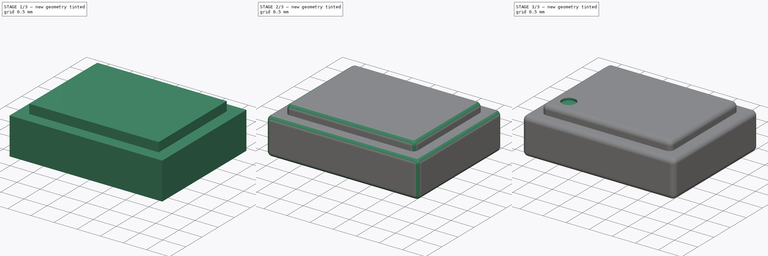
[diagram: build sequence overview — one tinted view per stage of 3, left to right]
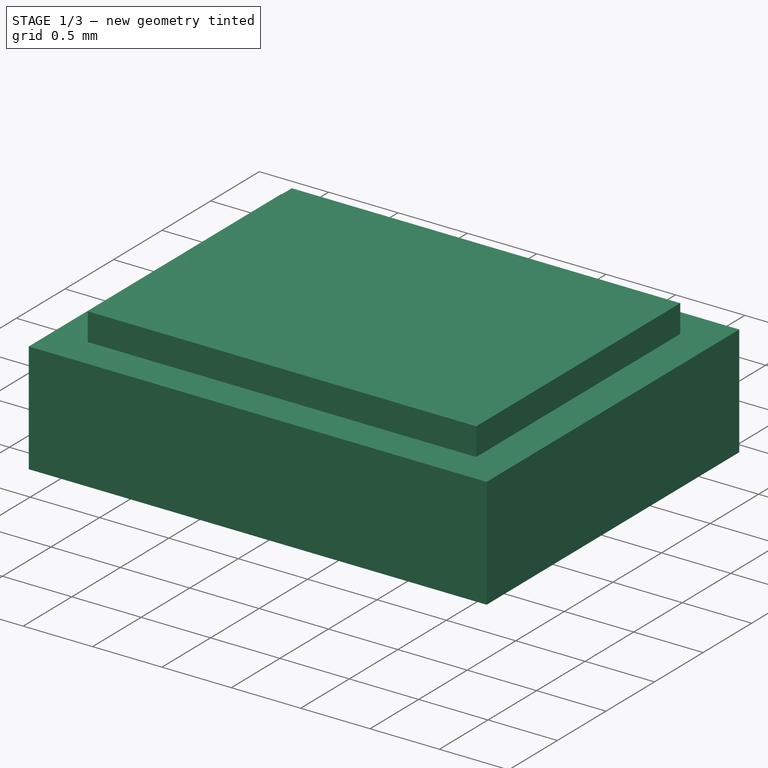
[diagram: stage 1 of 3 — iso view after this stage's code; geometry added in this stage tinted green]
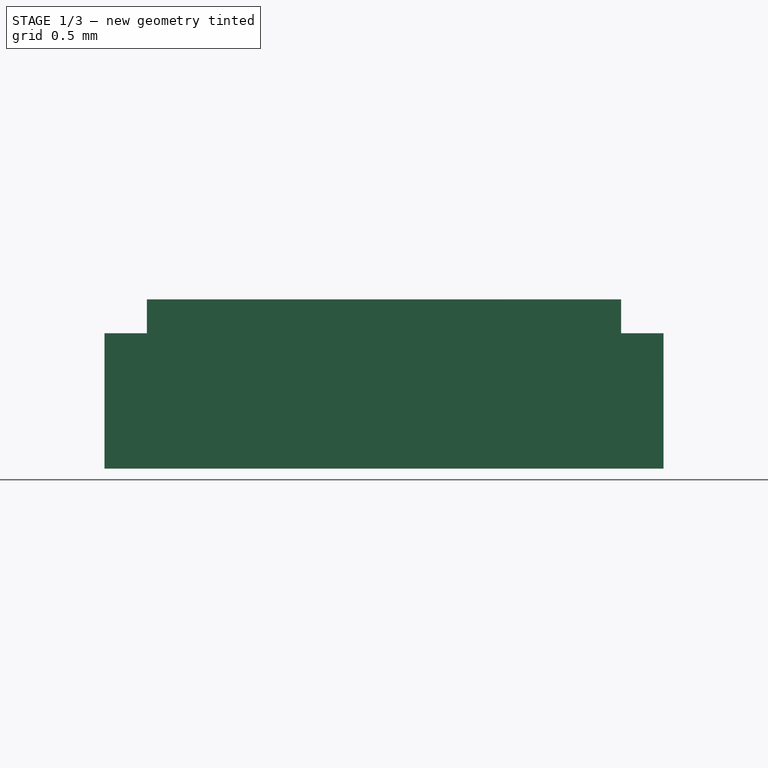
[diagram: stage 1 of 3 — front view after this stage's code; geometry added in this stage tinted green]
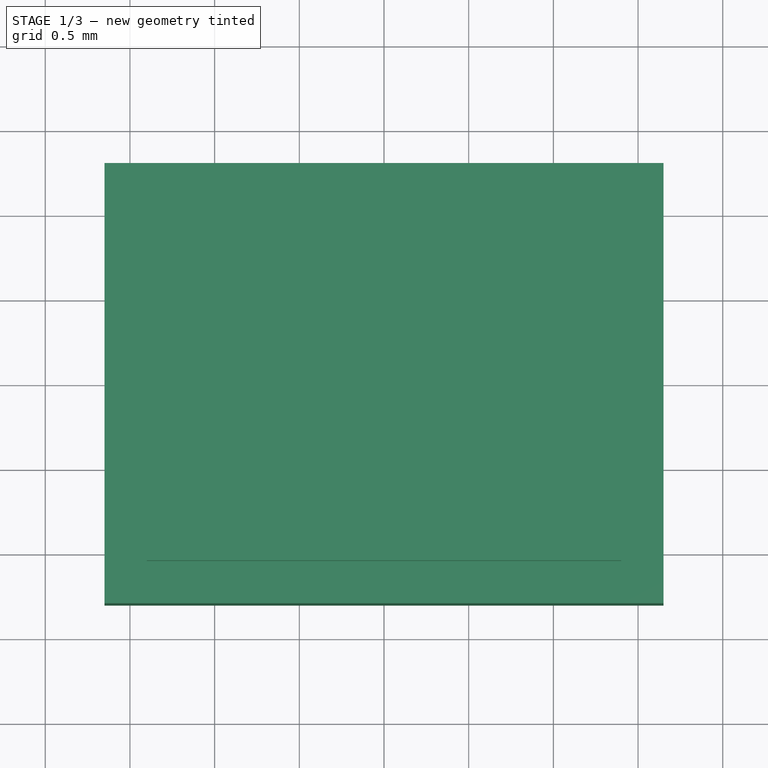
[diagram: stage 1 of 3 — top view after this stage's code; geometry added in this stage tinted green]
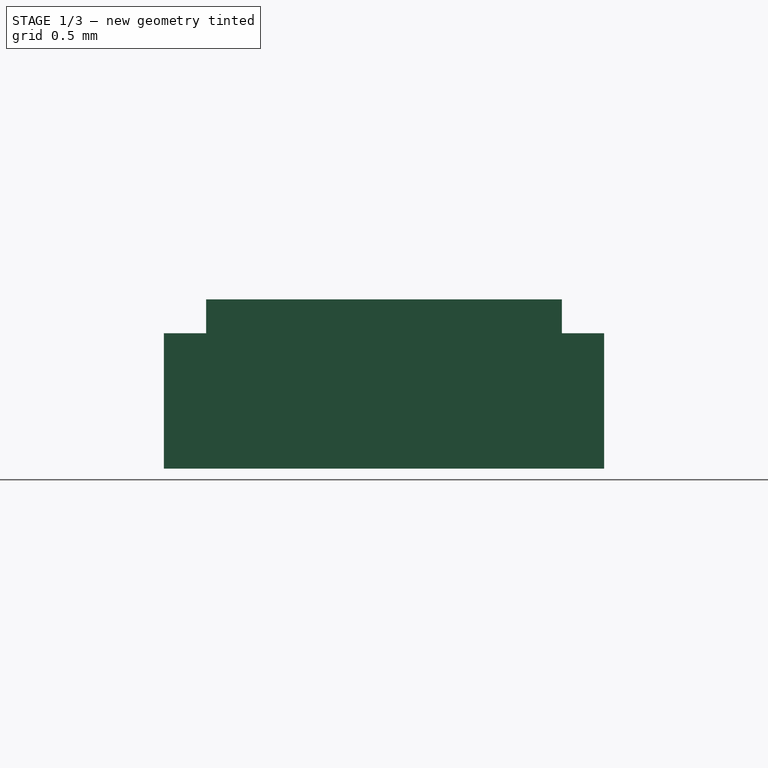
[diagram: stage 1 of 3 — right view after this stage's code; geometry added in this stage tinted green]
FCSTD DOCUMENT  (FreeCAD 0.16R6706 (Git))
Label: crystal_3.2x2.5
License: All rights reserved
LicenseURL: http://en.wikipedia.org/wiki/All_rights_reserved
objects: Sketcher::SketchObject×4, PartDesign::Pad×3, PartDesign::Fillet×2, PartDesign::Pocket×1
note: 14 computed .brp shape members not serialized (recipe doc carries the construction recipe); baked Part::Feature solids carry a one-line shape summary decoded from their .brp

FEATURE [Sketcher::SketchObject] Sketch
  sketch-geometry (4):
    g0: LineSegment StartX=-1.65 StartY=1.3 StartZ=0 EndX=1.65 EndY=1.3 EndZ=0
    g1: LineSegment StartX=1.65 StartY=1.3 StartZ=0 EndX=1.65 EndY=-1.3 EndZ=0
    g2: LineSegment StartX=1.65 StartY=-1.3 StartZ=0 EndX=-1.65 EndY=-1.3 EndZ=0
    g3: LineSegment StartX=-1.65 StartY=-1.3 StartZ=0 EndX=-1.65 EndY=1.3 EndZ=0
  constraints (12):
    c: Coincident(g0,g1)
    c: Coincident(g1,g2)
    c: Coincident(g2,g3)
    c: Coincident(g3,g0)
    c: Horizontal(g0)
    c: Horizontal(g2)
    c: Vertical(g1)
    c: Vertical(g3)
    c: Symmetric(g0,g0,g-2)
    c: Symmetric(g0,g1,g-1)
    c: DistanceX(g2,g2) = 3.3
    c: DistanceY(g1,g1) = 2.6
FEATURE [PartDesign::Pad] Pad
  Length = 0.8
  Length2 = 100
  Sketch = -> Sketch
  Type = 0
FEATURE [Sketcher::SketchObject] Sketch001
  Placement = pos=(0,0,0.8) rot=(0,0,1;0rad)
  Support = -> Pad [Face6]
  sketch-geometry (4):
    g0: LineSegment StartX=-1.4 StartY=1.05 StartZ=0 EndX=1.4 EndY=1.05 EndZ=0
    g1: LineSegment StartX=1.4 StartY=1.05 StartZ=0 EndX=1.4 EndY=-1.05 EndZ=0
    g2: LineSegment StartX=1.4 StartY=-1.05 StartZ=0 EndX=-1.4 EndY=-1.05 EndZ=0
    g3: LineSegment StartX=-1.4 StartY=-1.05 StartZ=0 EndX=-1.4 EndY=1.05 EndZ=0
  constraints (12):
    c: Coincident(g0,g1)
    c: Coincident(g1,g2)
    c: Coincident(g2,g3)
    c: Coincident(g3,g0)
    c: Horizontal(g0)
    c: Horizontal(g2)
    c: Vertical(g1)
    c: Vertical(g3)
    c: Symmetric(g0,g0,g-2)
    c: Symmetric(g0,g1,g-1)
    c: DistanceX(g2,g2) = 2.8
    c: DistanceY(g1,g1) = 2.1
FEATURE [PartDesign::Pad] Pad001
  Length = 0.2
  Length2 = 100
  Sketch = -> Sketch001
  Type = 0
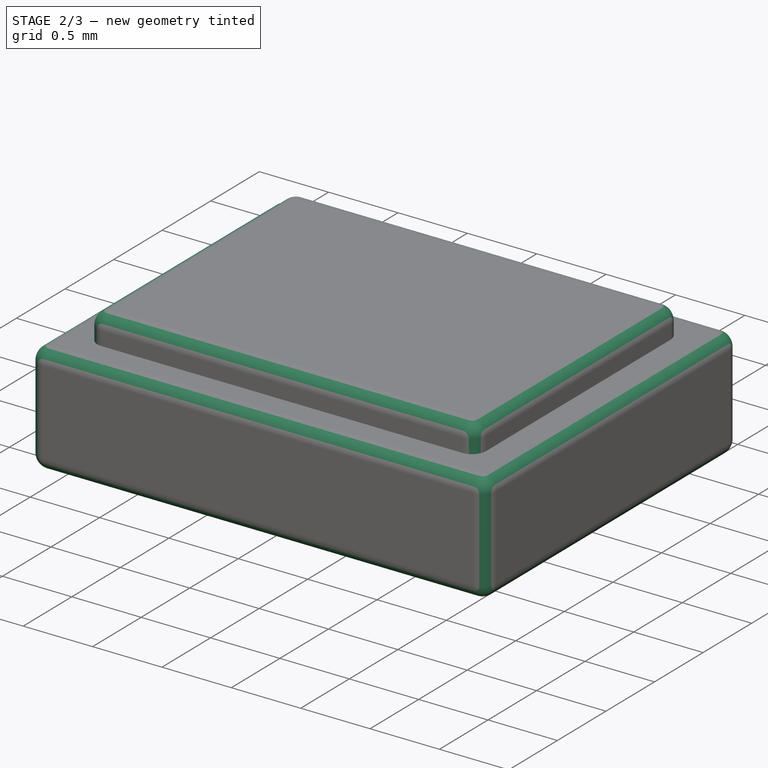
[diagram: stage 2 of 3 — iso view after this stage's code; geometry added in this stage tinted green]
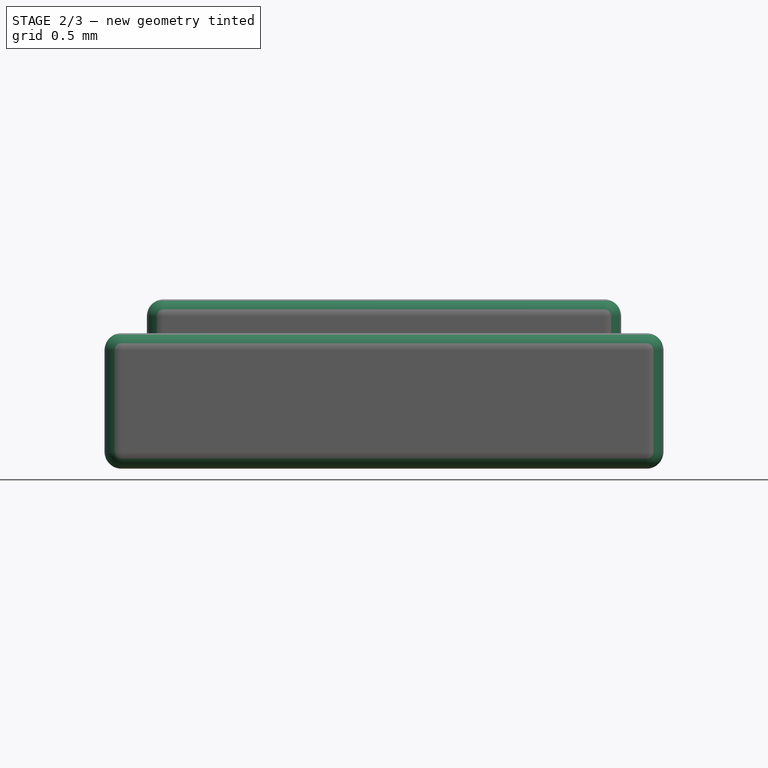
[diagram: stage 2 of 3 — front view after this stage's code; geometry added in this stage tinted green]
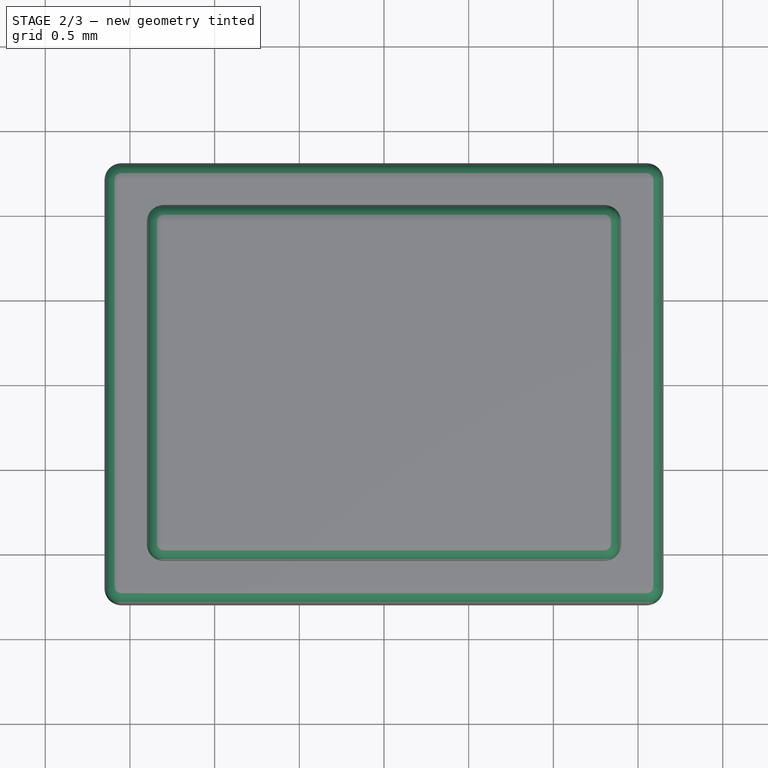
[diagram: stage 2 of 3 — top view after this stage's code; geometry added in this stage tinted green]
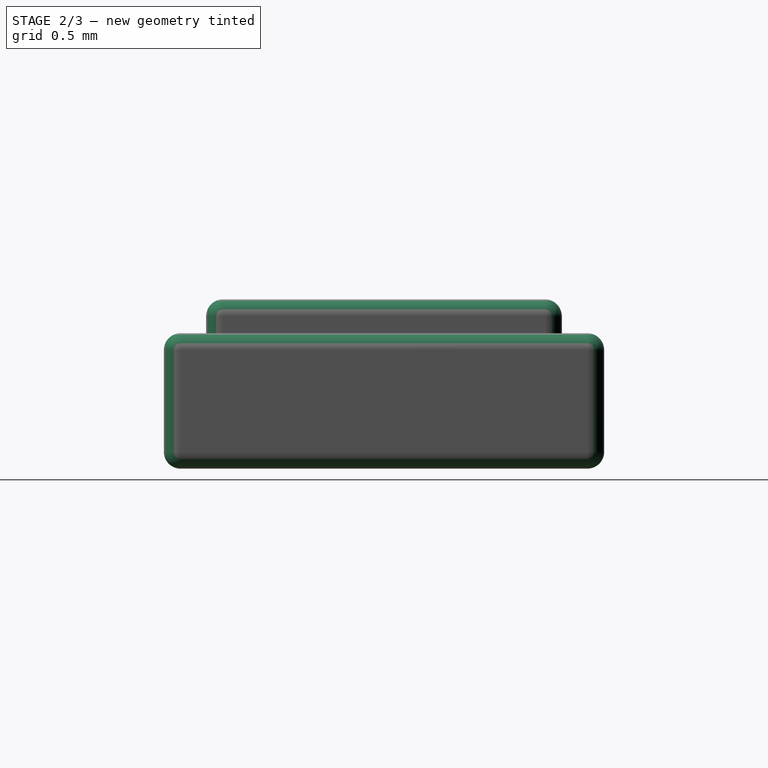
[diagram: stage 2 of 3 — right view after this stage's code; geometry added in this stage tinted green]
FEATURE [PartDesign::Fillet] Fillet
  Base = -> Pad001 [Edge24,Edge23,Edge21,Edge18,Edge19,Edge22,Edge20,Edge17]
  Radius = 0.1
FEATURE [PartDesign::Fillet] Fillet001
  Base = -> Fillet [Edge10,Edge12,Edge32,Edge34,Edge30,Edge29,Edge9,Edge11,Edge35,Edge31,Edge33,Edge36]
  Radius = 0.1
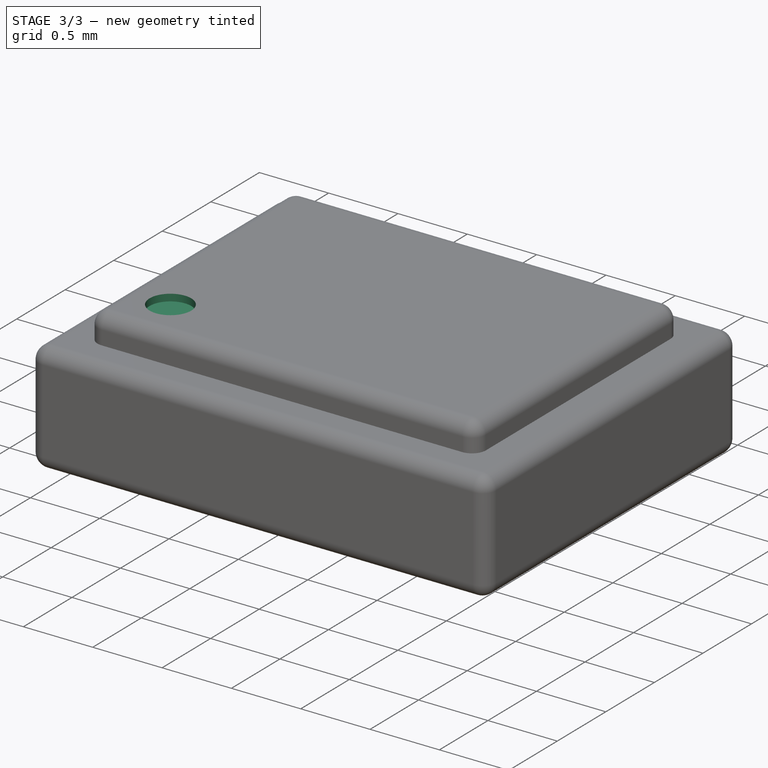
[diagram: stage 3 of 3 — iso view after this stage's code; geometry added in this stage tinted green]
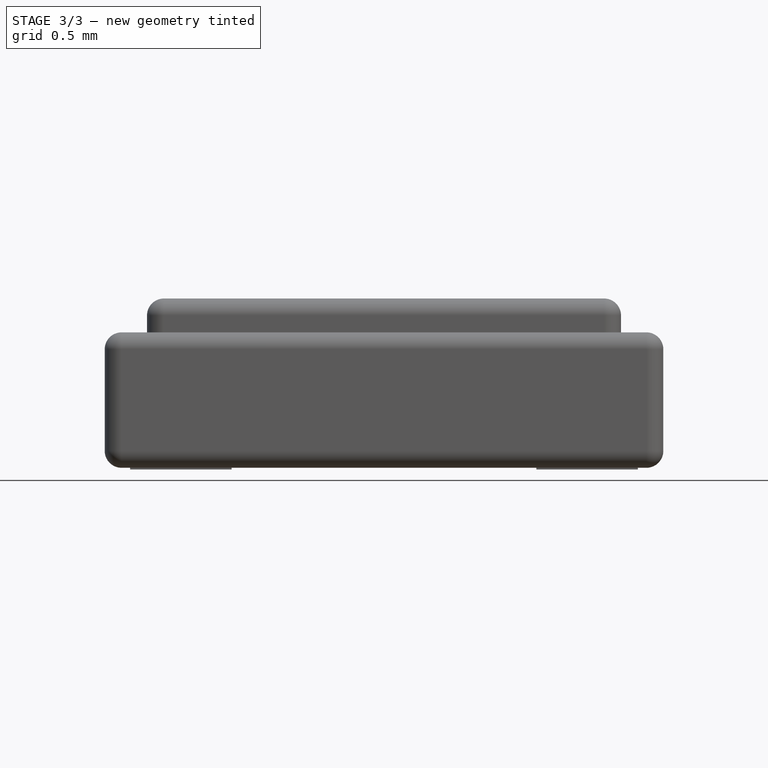
[diagram: stage 3 of 3 — front view after this stage's code; geometry added in this stage tinted green]
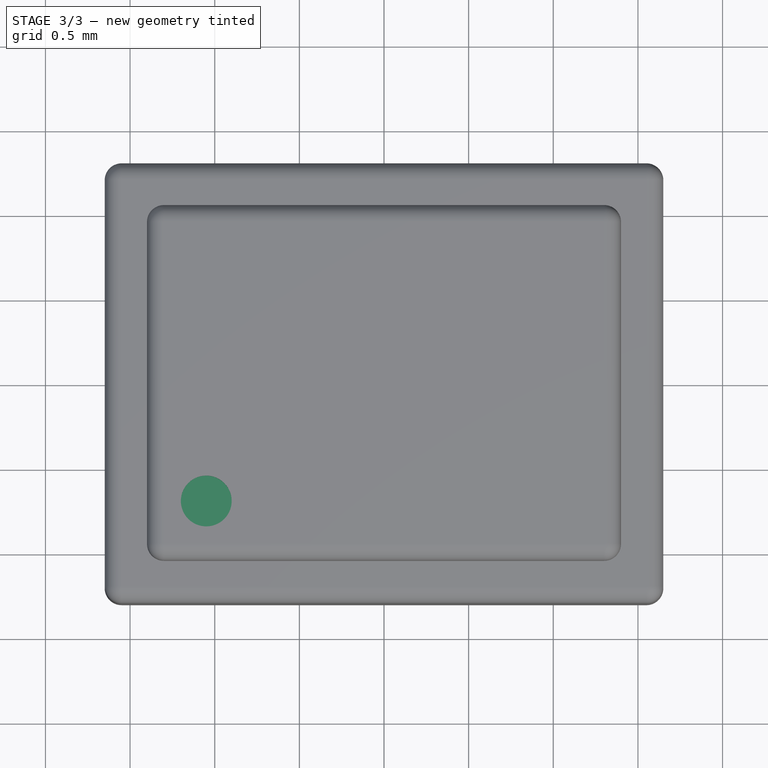
[diagram: stage 3 of 3 — top view after this stage's code; geometry added in this stage tinted green]
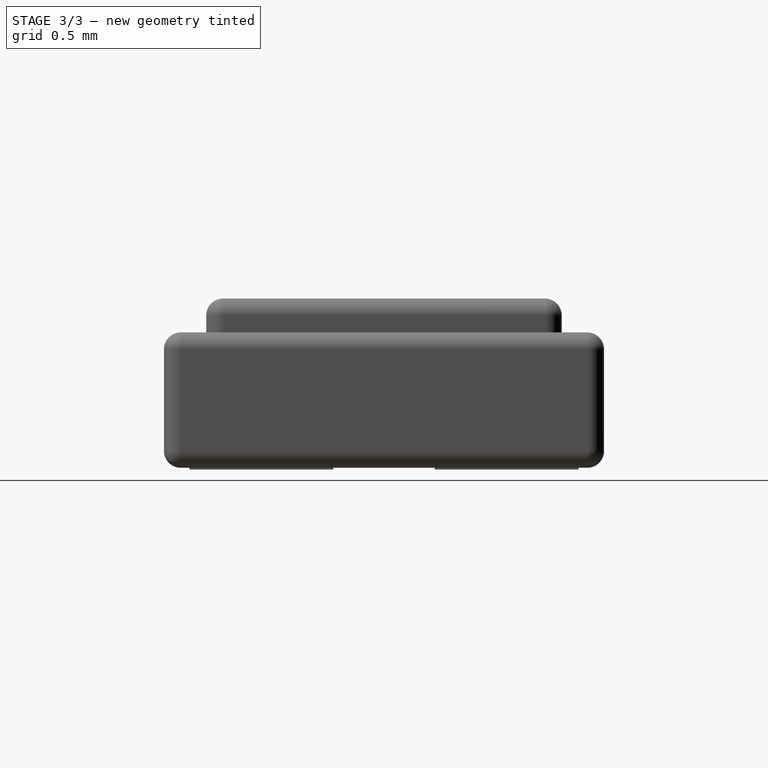
[diagram: stage 3 of 3 — right view after this stage's code; geometry added in this stage tinted green]
FEATURE [Sketcher::SketchObject] Sketch002
  Placement = pos=(0,0,1) rot=(0,0,1;0rad)
  Support = -> Fillet001 [Face38]
  sketch-geometry (1):
    g0: Circle CenterX=-1.05 CenterY=-0.7 CenterZ=0 NormalX=0 NormalY=0 NormalZ=1 Radius=0.15
  constraints (3):
    c: DistanceX(g0,g-1) = 1.05
    c: DistanceY(g0,g-1) = 0.7
    c: Radius(g0) = 0.15
FEATURE [PartDesign::Pocket] Pocket
  Length = 0.05
  Sketch = -> Sketch002
  Type = 0
FEATURE [Sketcher::SketchObject] Sketch003
  Placement = pos=(0,0,0) rot=(1,0,0;3.14159rad)
  Support = -> Pocket [Face41]
  sketch-geometry (16):
    g0: LineSegment StartX=0.9 StartY=1.15 StartZ=0 EndX=1.5 EndY=1.15 EndZ=0
    g1: LineSegment StartX=1.5 StartY=1.15 StartZ=0 EndX=1.5 EndY=0.3 EndZ=0
    g2: LineSegment StartX=1.5 StartY=0.3 StartZ=0 EndX=0.9 EndY=0.3 EndZ=0
    g3: LineSegment StartX=0.9 StartY=0.3 StartZ=0 EndX=0.9 EndY=1.15 EndZ=0
    g4: LineSegment StartX=0.9 StartY=-0.3 StartZ=0 EndX=1.5 EndY=-0.3 EndZ=0
    g5: LineSegment StartX=1.5 StartY=-0.3 StartZ=0 EndX=1.5 EndY=-1.15 EndZ=0
    g6: LineSegment StartX=1.5 StartY=-1.15 StartZ=0 EndX=0.9 EndY=-1.15 EndZ=0
    g7: LineSegment StartX=0.9 StartY=-1.15 StartZ=0 EndX=0.9 EndY=-0.3 EndZ=0
    g8: LineSegment StartX=-1.5 StartY=-0.3 StartZ=0 EndX=-0.9 EndY=-0.3 EndZ=0
    g9: LineSegment StartX=-0.9 StartY=-0.3 StartZ=0 EndX=-0.9 EndY=-1.15 EndZ=0
    g10: LineSegment StartX=-0.9 StartY=-1.15 StartZ=0 EndX=-1.5 EndY=-1.15 EndZ=0
    g11: LineSegment StartX=-1.5 StartY=-1.15 StartZ=0 EndX=-1.5 EndY=-0.3 EndZ=0
    g12: LineSegment StartX=-1.5 StartY=1.15 StartZ=0 EndX=-0.9 EndY=1.15 EndZ=0
    g13: LineSegment StartX=-0.9 StartY=1.15 StartZ=0 EndX=-0.9 EndY=0.3 EndZ=0
    g14: LineSegment StartX=-0.9 StartY=0.3 StartZ=0 EndX=-1.5 EndY=0.3 EndZ=0
    g15: LineSegment StartX=-1.5 StartY=0.3 StartZ=0 EndX=-1.5 EndY=1.15 EndZ=0
  constraints (45):
    c: Coincident(g0,g1)
    c: Coincident(g1,g2)
    c: Coincident(g2,g3)
    c: Coincident(g3,g0)
    c: Horizontal(g0)
    c: Horizontal(g2)
    c: Vertical(g1)
    c: Vertical(g3)
    c: DistanceX(g0,g0) = 0.6
    c: DistanceY(g1,g1) = 0.85
    c: Coincident(g4,g5)
    c: Coincident(g5,g6)
    c: Coincident(g6,g7)
    c: Coincident(g7,g4)
    c: Horizontal(g4)
    c: Horizontal(g6)
    c: Vertical(g5)
    c: Vertical(g7)
    c: Coincident(g8,g9)
    c: Coincident(g9,g10)
    c: Coincident(g10,g11)
    c: Coincident(g11,g8)
    c: Horizontal(g8)
    c: Horizontal(g10)
    c: Vertical(g9)
    c: Vertical(g11)
    c: Coincident(g12,g13)
    c: Coincident(g13,g14)
    c: Coincident(g14,g15)
    c: Coincident(g15,g12)
    c: Horizontal(g12)
    c: Horizontal(g14)
    c: Vertical(g13)
    c: Vertical(g15)
    c: Equal(g0,g4)
    c: Equal(g4,g8)
    c: Equal(g8,g12)
    c: Equal(g13,g9)
    c: Equal(g9,g1)
    c: Equal(g1,g5)
    c: DistanceX(g-1,g2) = 0.9
    c: DistanceY(g-1,g2) = 0.3
    c: Symmetric(g2,g4,g-1)
    c: Symmetric(g2,g13,g-2)
    c: Symmetric(g13,g8,g-1)
FEATURE [PartDesign::Pad] Pad002
  Length = 0.01
  Length2 = 100
  Sketch = -> Sketch003
  Type = 0
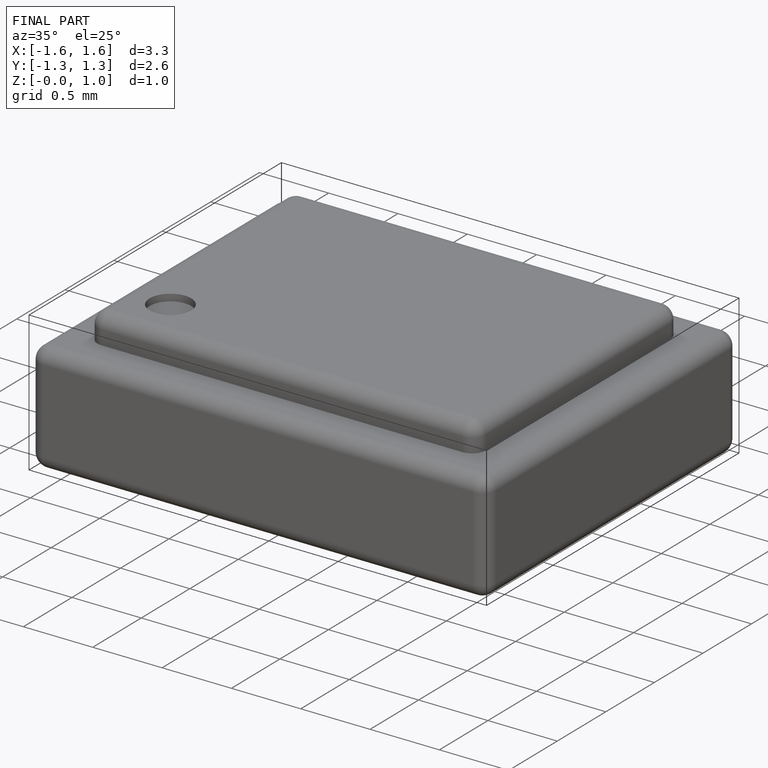
[diagram: finished part — iso view with bounding-box wireframe]
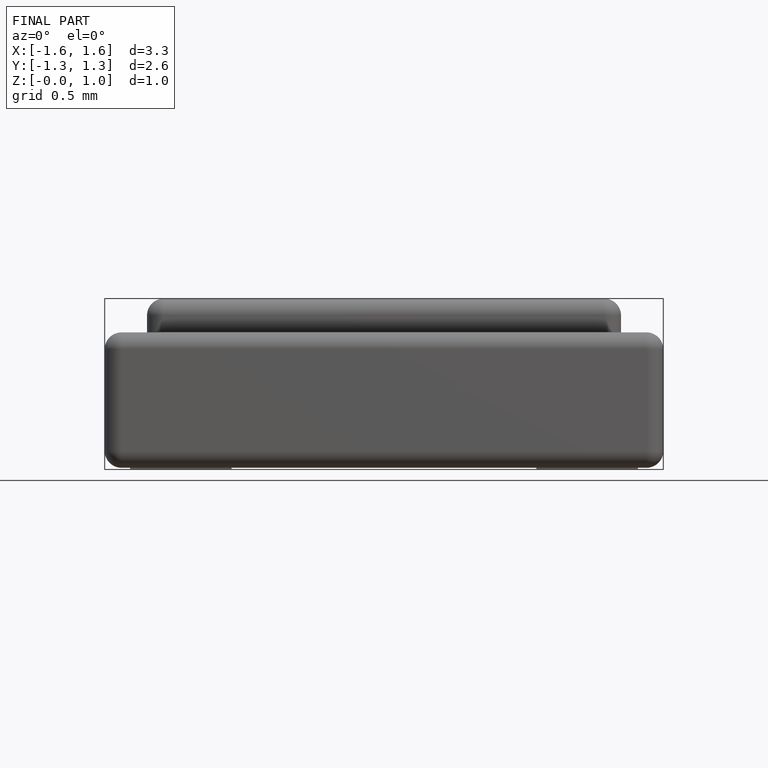
[diagram: finished part — front view with bounding-box wireframe]
